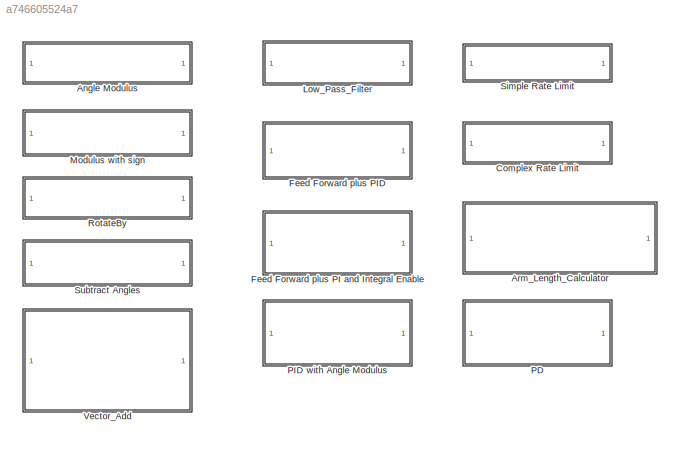
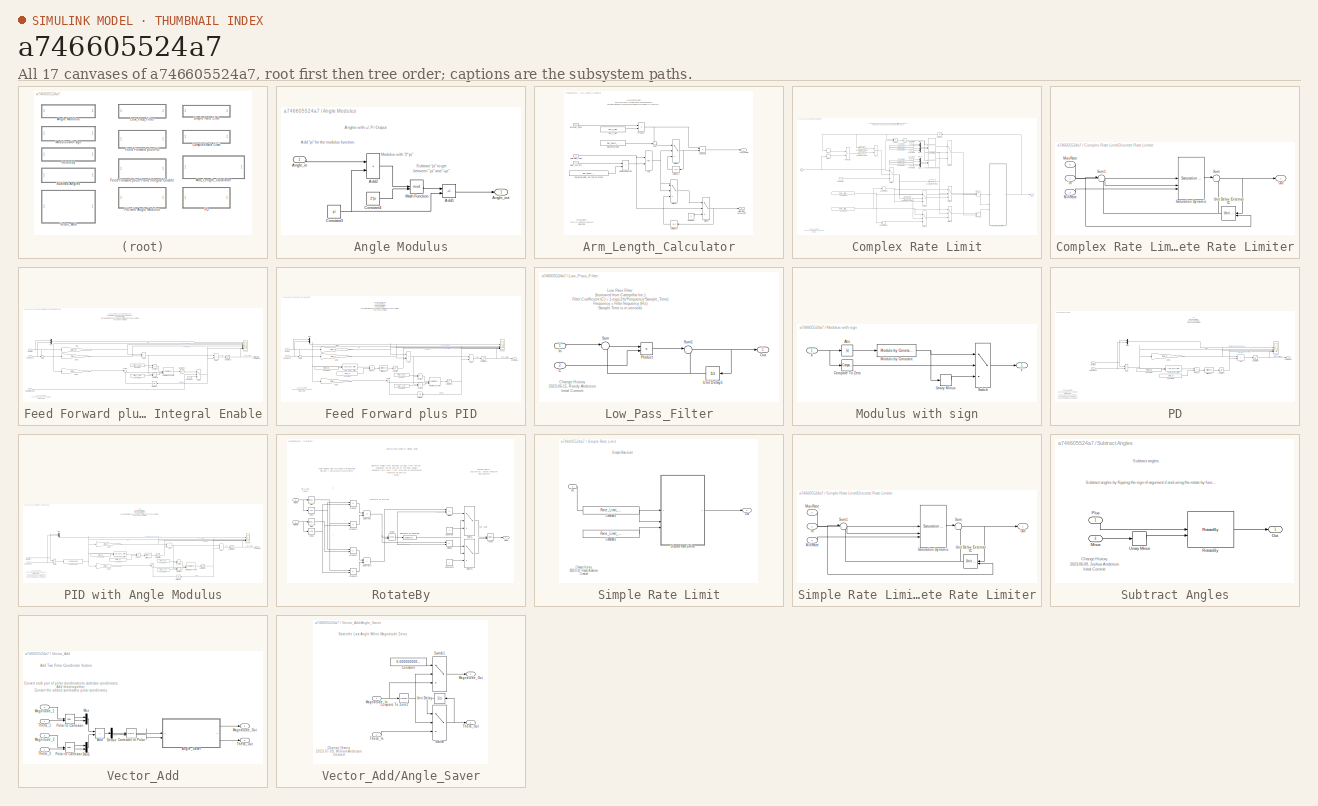
[diagram: thumbnail index - all 17 canvases of the model, root first then tree order]
MODEL slx_a746605524a7
KIND library
CONFIG AbsTol = auto
CONFIG EnableMultiTasking = off
CONFIG FixedStep = auto
CONFIG MaxStep = auto
CONFIG MinStep = auto
CONFIG RelTol = 1e-3
CONFIG SampleTimeConstraint = Unconstrained
CONFIG SolverName = VariableStepAuto
CONFIG StartTime = 0.0
CONFIG StopTime = 10.0
BLOCK [SubSystem] Angle Modulus
BLOCK [Sum] Angle Modulus/Add1
  IconShape = rectangular
  Inputs = +-
BLOCK [Sum] Angle Modulus/Add2
  IconShape = rectangular
BLOCK [Inport] Angle Modulus/Angle_in
BLOCK [Outport] Angle Modulus/Angle_out
BLOCK [Constant] Angle Modulus/Constant3
  Value = pi
BLOCK [Constant] Angle Modulus/Constant4
  Value = 2*pi
BLOCK [Math] Angle Modulus/Math Function
  Operator = mod
BLOCK [SubSystem] Arm_Length_Calculator
BLOCK [Logic] Arm_Length_Calculator/AND
  AllPortsSameDT = off
  OutDataTypeStr = boolean
BLOCK [Outport] Arm_Length_Calculator/Arm_Length
BLOCK [Inport] Arm_Length_Calculator/Calibration_Active
  Port = 3
BLOCK [Outport] Arm_Length_Calculator/Callibration_Successful
  Port = 2
BLOCK [Constant] Arm_Length_Calculator/Constant
  OutDataTypeStr = Inherit: Inherit via back propagation
  Value = 0
BLOCK [Constant] Arm_Length_Calculator/Dist_Reset_Motor_Current_Threshold
  Value = Dist_Reset_Motor_Current_Threshold
BLOCK [Constant] Arm_Length_Calculator/Dist_Reset_Value
  Value = Dist_Reset_Value
BLOCK [Inport] Arm_Length_Calculator/Encoder_Revs
BLOCK [Inport] Arm_Length_Calculator/Motor_Current
  Port = 2
BLOCK [Product] Arm_Length_Calculator/Product
BLOCK [RelationalOperator] Arm_Length_Calculator/Relational Operator
  InputSameDT = off
  Operator = >
  OutDataTypeStr = boolean
  RndMeth = Simplest
BLOCK [Constant] Arm_Length_Calculator/Rev_2_Dist
  Value = Rev_2_Dist
BLOCK [Sum] Arm_Length_Calculator/Subtract1
  IconShape = rectangular
  Inputs = +-
BLOCK [Sum] Arm_Length_Calculator/Sum
  Inputs = +-|
BLOCK [Switch] Arm_Length_Calculator/Switch1
  Criteria = u2 ~= 0
  InputSameDT = off
  SaturateOnIntegerOverflow = off
BLOCK [Switch] Arm_Length_Calculator/Switch2
  Criteria = u2 ~= 0
  InputSameDT = off
  SaturateOnIntegerOverflow = off
BLOCK [Switch] Arm_Length_Calculator/Switch3
  Criteria = u2 ~= 0
  InputSameDT = off
  SaturateOnIntegerOverflow = off
BLOCK [UnitDelay] Arm_Length_Calculator/Unit Delay1
  HasFrameUpgradeWarning = on
  SampleTime = -1
BLOCK [UnitDelay] Arm_Length_Calculator/Unit Delay2
  HasFrameUpgradeWarning = on
  SampleTime = -1
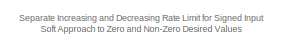
[diagram: Complex Rate Limit - part 1/5, top center region]
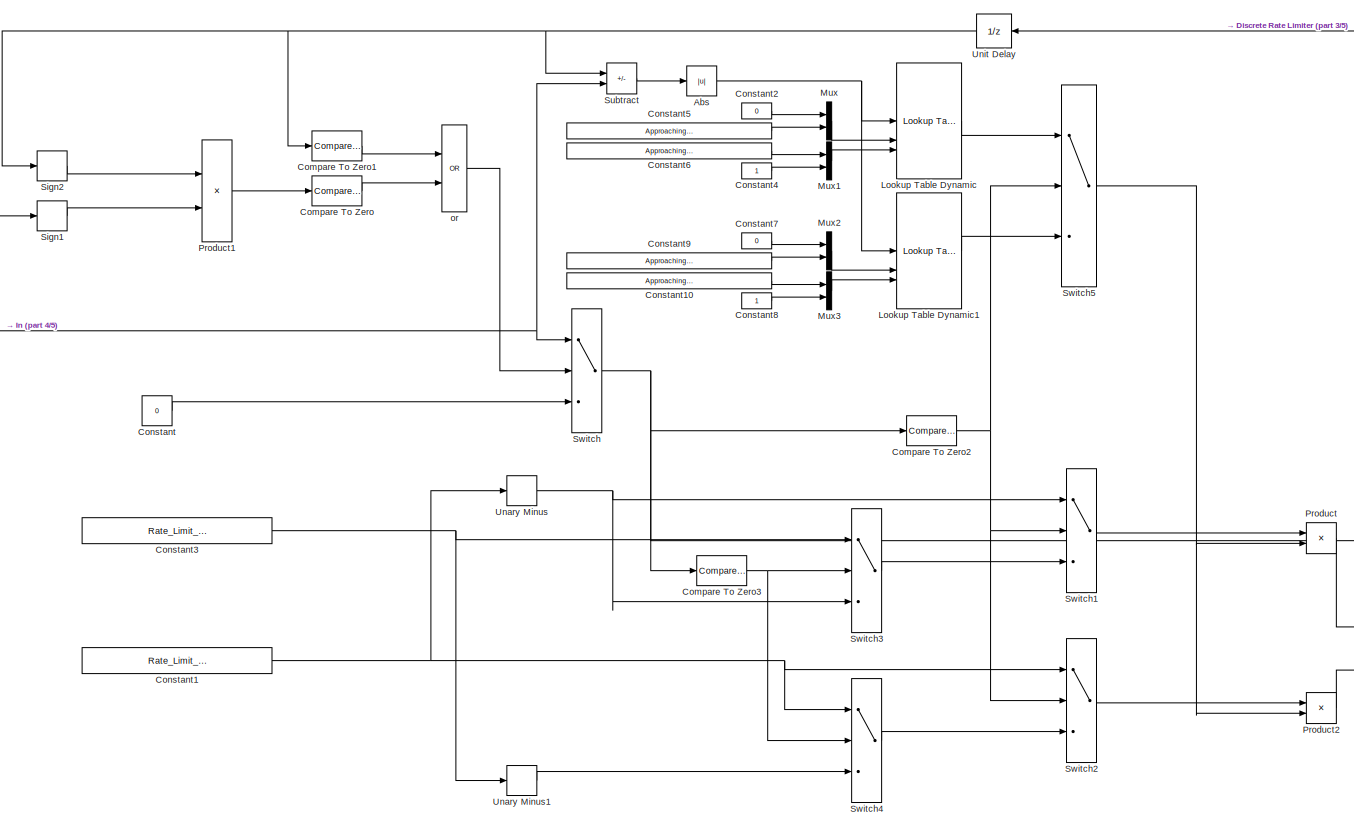
[diagram: Complex Rate Limit - part 2/5, center side, full height]
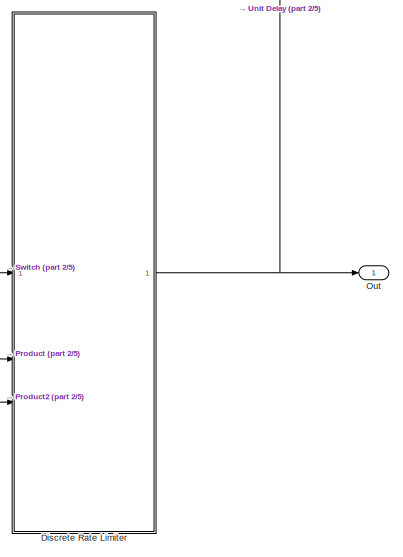
[diagram: Complex Rate Limit - part 3/5, middle right region]
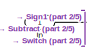
[diagram: Complex Rate Limit - part 4/5, middle left region]
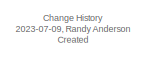
[diagram: Complex Rate Limit - part 5/5, bottom left region]
BLOCK [SubSystem] Complex Rate Limit
BLOCK [Abs] Complex Rate Limit/Abs
  SaturateOnIntegerOverflow = off
BLOCK [Reference] Complex Rate Limit/Compare To Zero  REF=simulink/Logic and Bit
Operations/Compare
To Zero
  AttributesFormatString = %<OutDataTypeStr>
  SourceBlock = simulink/Logic and Bit\nOperations/Compare\nTo Zero
  SourceType = Compare To Zero
BLOCK [Reference] Complex Rate Limit/Compare To Zero1  REF=simulink/Logic and Bit
Operations/Compare
To Zero
  AttributesFormatString = %<OutDataTypeStr>
  SourceBlock = simulink/Logic and Bit\nOperations/Compare\nTo Zero
  SourceType = Compare To Zero
BLOCK [Reference] Complex Rate Limit/Compare To Zero2  REF=simulink/Logic and Bit
Operations/Compare
To Zero
  AttributesFormatString = %<OutDataTypeStr>
  SourceBlock = simulink/Logic and Bit\nOperations/Compare\nTo Zero
  SourceType = Compare To Zero
BLOCK [Reference] Complex Rate Limit/Compare To Zero3  REF=simulink/Logic and Bit
Operations/Compare
To Zero
  AttributesFormatString = %<OutDataTypeStr>
  SourceBlock = simulink/Logic and Bit\nOperations/Compare\nTo Zero
  SourceType = Compare To Zero
BLOCK [Constant] Complex Rate Limit/Constant
  AttributesFormatString = %<OutDataTypeStr>
  OutDataTypeStr = Inherit: Inherit via back propagation
  Value = 0
BLOCK [Constant] Complex Rate Limit/Constant1
  AttributesFormatString = %<OutDataTypeStr>
  Value = Rate_Limit_Dec
BLOCK [Constant] Complex Rate Limit/Constant10
  Value = Approaching_NonZero_Final_Scale_Factor
BLOCK [Constant] Complex Rate Limit/Constant2
  Value = 0
BLOCK [Constant] Complex Rate Limit/Constant3
  AttributesFormatString = %<OutDataTypeStr>
  Value = Rate_Limit_Inc
BLOCK [Constant] Complex Rate Limit/Constant4
BLOCK [Constant] Complex Rate Limit/Constant5
  Value = Approaching_Zero_Error_Threshold
BLOCK [Constant] Complex Rate Limit/Constant6
  Value = Approaching_Zero_Final_Scale_Factor
BLOCK [Constant] Complex Rate Limit/Constant7
  Value = 0
BLOCK [Constant] Complex Rate Limit/Constant8
BLOCK [Constant] Complex Rate Limit/Constant9
  Value = Approaching_NonZero_Error_Threshold
BLOCK [SubSystem] Complex Rate Limit/Discrete Rate Limiter
BLOCK [Inport] Complex Rate Limit/Discrete Rate Limiter/In
BLOCK [Inport] Complex Rate Limit/Discrete Rate Limiter/MaxRate
  Port = 2
BLOCK [Inport] Complex Rate Limit/Discrete Rate Limiter/MinRate
  Port = 3
BLOCK [Outport] Complex Rate Limit/Discrete Rate Limiter/Out
BLOCK [Reference] Complex Rate Limit/Discrete Rate Limiter/Saturation Dynamic  REF=simulink/Discontinuities/Saturation
Dynamic
  SourceBlock = simulink/Discontinuities/Saturation\nDynamic
  SourceType = Saturation Dynamic
BLOCK [Sum] Complex Rate Limit/Discrete Rate Limiter/Sum
  Inputs = |++
  OutDataTypeStr = Inherit: Inherit via back propagation
BLOCK [Sum] Complex Rate Limit/Discrete Rate Limiter/Sum1
  Inputs = |+-
  OutDataTypeStr = Inherit: Inherit via back propagation
  SaturateOnIntegerOverflow = on
BLOCK [Reference] Complex Rate Limit/Discrete Rate Limiter/Unit Delay External IC  REF=simulink_need_slupdate/Unit Delay
External IC
  SourceBlock = simulink_need_slupdate/Unit Delay\nExternal IC
  SourceType = Unit Delay External Initial Condition
BLOCK [Inport] Complex Rate Limit/In
BLOCK [Reference] Complex Rate Limit/Lookup Table Dynamic  REF=simulink/Lookup
Tables/Lookup
Table
Dynamic
  SourceBlock = simulink/Lookup\nTables/Lookup\nTable\nDynamic
  SourceType = Lookup Table Dynamic
BLOCK [Reference] Complex Rate Limit/Lookup Table Dynamic1  REF=simulink/Lookup
Tables/Lookup
Table
Dynamic
  SourceBlock = simulink/Lookup\nTables/Lookup\nTable\nDynamic
  SourceType = Lookup Table Dynamic
BLOCK [Mux] Complex Rate Limit/Mux
  DisplayOption = bar
  Inputs = 2
BLOCK [Mux] Complex Rate Limit/Mux1
  DisplayOption = bar
  Inputs = 2
BLOCK [Mux] Complex Rate Limit/Mux2
  DisplayOption = bar
  Inputs = 2
BLOCK [Mux] Complex Rate Limit/Mux3
  DisplayOption = bar
  Inputs = 2
BLOCK [Outport] Complex Rate Limit/Out
BLOCK [Product] Complex Rate Limit/Product
BLOCK [Product] Complex Rate Limit/Product1
  AttributesFormatString = Input Same DT: %<InputSameDT>\n%<OutDataTypeStr>\nSaturate: %<SaturateOnIntegerOverflow>
  OutDataTypeStr = int8
  RndMeth = Simplest
BLOCK [Product] Complex Rate Limit/Product2
BLOCK [Signum] Complex Rate Limit/Sign1
BLOCK [Signum] Complex Rate Limit/Sign2
BLOCK [Sum] Complex Rate Limit/Subtract
  IconShape = rectangular
  Inputs = +-
BLOCK [Switch] Complex Rate Limit/Switch
  AttributesFormatString = %<Criteria>\nInput Same DT: %<InputSameDT>\n%<OutDataTypeStr>
  Criteria = u2 ~= 0
  SaturateOnIntegerOverflow = off
BLOCK [Switch] Complex Rate Limit/Switch1
  AttributesFormatString = %<Criteria>\nInput Same DT: %<InputSameDT>\n%<OutDataTypeStr>
  Criteria = u2 ~= 0
  SaturateOnIntegerOverflow = off
BLOCK [Switch] Complex Rate Limit/Switch2
  AttributesFormatString = %<Criteria>\nInput Same DT: %<InputSameDT>\n%<OutDataTypeStr>
  Criteria = u2 ~= 0
  SaturateOnIntegerOverflow = off
BLOCK [Switch] Complex Rate Limit/Switch3
  AttributesFormatString = %<Criteria>\nInput Same DT: %<InputSameDT>\n%<OutDataTypeStr>
  Criteria = u2 ~= 0
  SaturateOnIntegerOverflow = off
BLOCK [Switch] Complex Rate Limit/Switch4
  AttributesFormatString = %<Criteria>\nInput Same DT: %<InputSameDT>\n%<OutDataTypeStr>
  Criteria = u2 ~= 0
  SaturateOnIntegerOverflow = off
BLOCK [Switch] Complex Rate Limit/Switch5
  Criteria = u2 ~= 0
  InputSameDT = off
  SaturateOnIntegerOverflow = off
BLOCK [UnaryMinus] Complex Rate Limit/Unary Minus
BLOCK [UnaryMinus] Complex Rate Limit/Unary Minus1
BLOCK [UnitDelay] Complex Rate Limit/Unit Delay
  AttributesFormatString = IC: %<InitialCondition>
  HasFrameUpgradeWarning = on
  SampleTime = -1
BLOCK [Logic] Complex Rate Limit/or
  AttributesFormatString = Input Same DT: %<AllPortsSameDT>\n%<OutDataTypeStr>
  Operator = OR
  OutDataTypeStr = boolean
BLOCK [SubSystem] Feed Forward plus PI and Integral Enable
BLOCK [Sum] Feed Forward plus PI and Integral Enable/Add
  IconShape = rectangular
  Inputs = 2
BLOCK [Sum] Feed Forward plus PI and Integral Enable/Add1
  IconShape = rectangular
  Inputs = 2
BLOCK [Outport] Feed Forward plus PI and Integral Enable/Command
BLOCK [Constant] Feed Forward plus PI and Integral Enable/Constant
  Value = Limit_T_Upper
BLOCK [Constant] Feed Forward plus PI and Integral Enable/Constant1
  Value = Limit_T_Lower
BLOCK [Constant] Feed Forward plus PI and Integral Enable/Constant2
  Value = 0
BLOCK [Inport] Feed Forward plus PI and Integral Enable/Desired
BLOCK [Inport] Feed Forward plus PI and Integral Enable/Feedback
  Port = 2
BLOCK [Gain] Feed Forward plus PI and Integral Enable/Gain
  Gain = Gain_FF
BLOCK [Gain] Feed Forward plus PI and Integral Enable/Gain1
  Gain = Gain_P
BLOCK [Gain] Feed Forward plus PI and Integral Enable/Gain2
  Gain = Gain_I
BLOCK [Inport] Feed Forward plus PI and Integral Enable/Integral Enable
  Port = 3
BLOCK [Mux] Feed Forward plus PI and Integral Enable/Mux
  DisplayOption = bar
  Inputs = 2
BLOCK [Reference] Feed Forward plus PI and Integral Enable/Saturation Dynamic  REF=simulink/Discontinuities/Saturation
Dynamic
  SourceBlock = simulink/Discontinuities/Saturation\nDynamic
  SourceType = Saturation Dynamic
BLOCK [Saturate] Feed Forward plus PI and Integral Enable/Saturation1
  LowerLimit = Limit_I_Lower
  UpperLimit = Limit_I_Upper
BLOCK [Saturate] Feed Forward plus PI and Integral Enable/Saturation2
  LowerLimit = Limit_T_Lower
  UpperLimit = Limit_T_Upper
BLOCK [Scope] Feed Forward plus PI and Integral Enable/Scope
  Floating = off
  NumInputPorts = 6
  ScopeSpecificationString = Simulink.scopes.TimeScopeBlockCfg('CurrentConfiguration', extmgr.ConfigurationSet(extmgr.Configuration('Core','General UI',true),extmgr.Configuration('Core','Source UI',true),extmgr.Configuration('Sources','WiredSimulink',true,'DataLoggingVariableName','ScopeData1'),extmgr.Configuration('Visuals','Time Domain',true,'SerializedDisplays',{struct('MinYLimReal','-10','MaxYLimReal','10','YLabelReal',''...<+4834ch>
BLOCK [Sum] Feed Forward plus PI and Integral Enable/Subtract
  IconShape = rectangular
  Inputs = +-
BLOCK [Sum] Feed Forward plus PI and Integral Enable/Subtract1
  IconShape = rectangular
  Inputs = -+
BLOCK [Sum] Feed Forward plus PI and Integral Enable/Sum
  Inputs = +-|
BLOCK [Sum] Feed Forward plus PI and Integral Enable/Sum2
  Inputs = |++
BLOCK [Switch] Feed Forward plus PI and Integral Enable/Switch
  Criteria = u2 ~= 0
  InputSameDT = off
  SaturateOnIntegerOverflow = off
BLOCK [UnitDelay] Feed Forward plus PI and Integral Enable/Unit Delay
  HasFrameUpgradeWarning = on
  SampleTime = -1
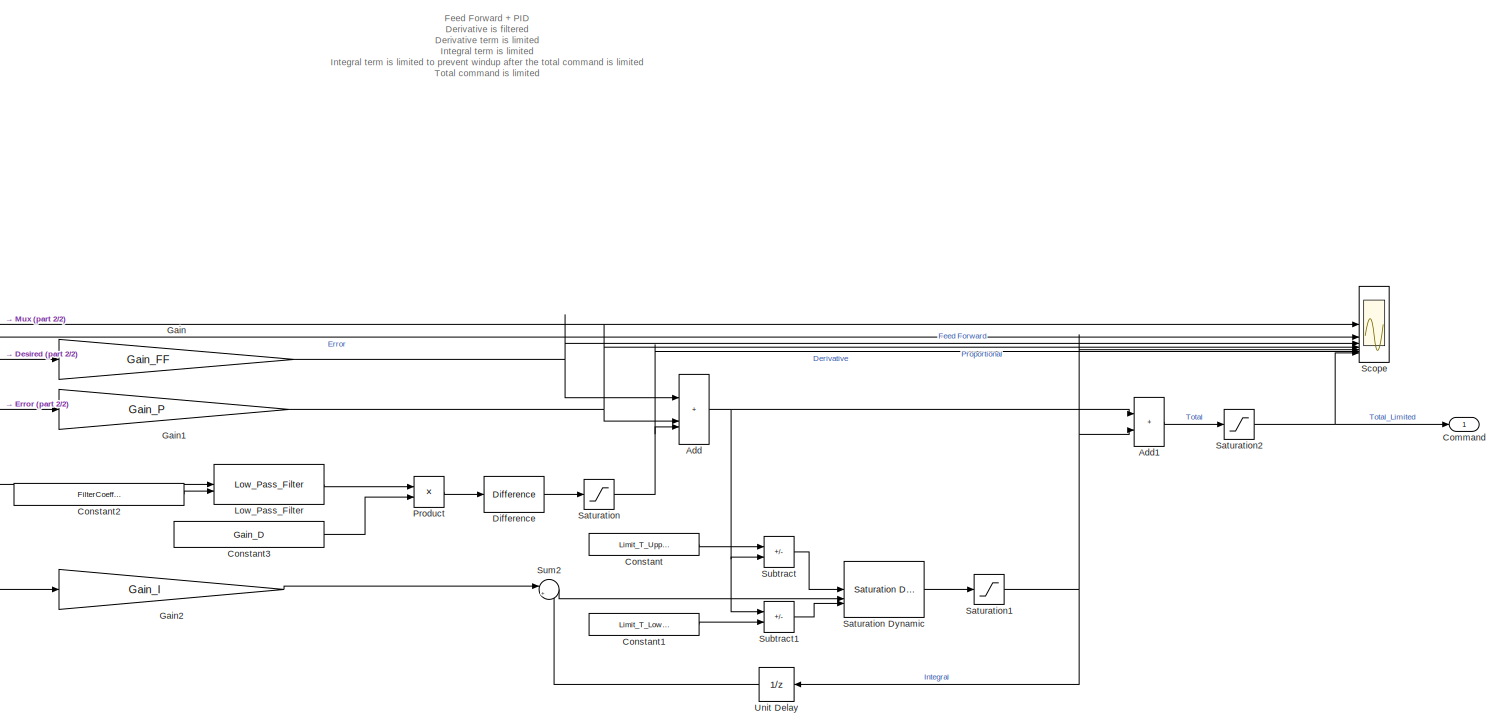
[diagram: Feed Forward plus PID - part 1/2, most of the canvas]
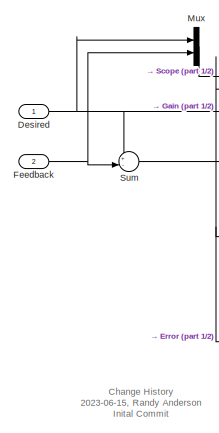
[diagram: Feed Forward plus PID - part 2/2, middle left region]
BLOCK [SubSystem] Feed Forward plus PID
BLOCK [Sum] Feed Forward plus PID/Add
  IconShape = rectangular
  Inputs = 3
BLOCK [Sum] Feed Forward plus PID/Add1
  IconShape = rectangular
  Inputs = 2
BLOCK [Outport] Feed Forward plus PID/Command
BLOCK [Constant] Feed Forward plus PID/Constant
  Value = Limit_T_Upper
BLOCK [Constant] Feed Forward plus PID/Constant1
  Value = Limit_T_Lower
BLOCK [Constant] Feed Forward plus PID/Constant2
  Value = FilterCoeff_D
BLOCK [Constant] Feed Forward plus PID/Constant3
  Value = Gain_D
BLOCK [Inport] Feed Forward plus PID/Desired
BLOCK [Reference] Feed Forward plus PID/Difference  REF=simulink/Discrete/Difference
  SourceBlock = simulink/Discrete/Difference
  SourceType = Difference
BLOCK [Inport] Feed Forward plus PID/Feedback
  Port = 2
BLOCK [Gain] Feed Forward plus PID/Gain
  Gain = Gain_FF
BLOCK [Gain] Feed Forward plus PID/Gain1
  Gain = Gain_P
BLOCK [Gain] Feed Forward plus PID/Gain2
  Gain = Gain_I
BLOCK [Reference] Feed Forward plus PID/Low_Pass_Filter  REF=$bdroot/Low_Pass_Filter
  SourceBlock = $bdroot/Low_Pass_Filter
  SourceType = SubSystem
BLOCK [Mux] Feed Forward plus PID/Mux
  DisplayOption = bar
  Inputs = 2
BLOCK [Product] Feed Forward plus PID/Product
BLOCK [Saturate] Feed Forward plus PID/Saturation
  LowerLimit = Limit_D_Lower
  UpperLimit = Limit_D_Upper
BLOCK [Reference] Feed Forward plus PID/Saturation Dynamic  REF=simulink/Discontinuities/Saturation
Dynamic
  SourceBlock = simulink/Discontinuities/Saturation\nDynamic
  SourceType = Saturation Dynamic
BLOCK [Saturate] Feed Forward plus PID/Saturation1
  LowerLimit = Limit_I_Lower
  UpperLimit = Limit_I_Upper
BLOCK [Saturate] Feed Forward plus PID/Saturation2
  LowerLimit = Limit_T_Lower
  UpperLimit = Limit_T_Upper
BLOCK [Scope] Feed Forward plus PID/Scope
  Floating = off
  NumInputPorts = 7
  ScopeSpecificationString = Simulink.scopes.TimeScopeBlockCfg('CurrentConfiguration', extmgr.ConfigurationSet(extmgr.Configuration('Core','General UI',true),extmgr.Configuration('Core','Source UI',true),extmgr.Configuration('Sources','WiredSimulink',true,'DataLoggingVariableName','ScopeData1'),extmgr.Configuration('Visuals','Time Domain',true,'SerializedDisplays',{struct('MinYLimReal','-10','MaxYLimReal','10','YLabelReal',''...<+5726ch>
BLOCK [Sum] Feed Forward plus PID/Subtract
  IconShape = rectangular
  Inputs = +-
BLOCK [Sum] Feed Forward plus PID/Subtract1
  IconShape = rectangular
  Inputs = -+
BLOCK [Sum] Feed Forward plus PID/Sum
  Inputs = +-|
BLOCK [Sum] Feed Forward plus PID/Sum2
  Inputs = |++
BLOCK [UnitDelay] Feed Forward plus PID/Unit Delay
  HasFrameUpgradeWarning = on
  SampleTime = -1
BLOCK [SubSystem] Low_Pass_Filter
BLOCK [Inport] Low_Pass_Filter/C
  Port = 2
BLOCK [Inport] Low_Pass_Filter/In
BLOCK [Outport] Low_Pass_Filter/Out
BLOCK [Product] Low_Pass_Filter/Product
BLOCK [Sum] Low_Pass_Filter/Sum
  Inputs = |+-
BLOCK [Sum] Low_Pass_Filter/Sum1
  Inputs = |++
BLOCK [UnitDelay] Low_Pass_Filter/Unit Delay1
  HasFrameUpgradeWarning = on
  SampleTime = -1
BLOCK [SubSystem] Modulus with sign
BLOCK [Abs] Modulus with sign/Abs
  SaturateOnIntegerOverflow = off
BLOCK [Reference] Modulus with sign/Compare To Zero  REF=simulink/Logic and Bit
Operations/Compare
To Zero
  SourceBlock = simulink/Logic and Bit\nOperations/Compare\nTo Zero
  SourceType = Compare To Zero
BLOCK [Reference] Modulus with sign/Modulo by Constant  REF=embmathops/Modulo by Constant
  LibrarySourceBlock = embeddedMathLib/Modulo by Constant
  SourceBlock = embmathops/Modulo by Constant
  SourceType = fixed.system.ModByConstant
BLOCK [Switch] Modulus with sign/Switch
  Criteria = u2 ~= 0
  InputSameDT = off
  SaturateOnIntegerOverflow = off
BLOCK [UnaryMinus] Modulus with sign/Unary Minus
BLOCK [Inport] Modulus with sign/X
BLOCK [Outport] Modulus with sign/Y
BLOCK [SubSystem] PD
BLOCK [Sum] PD/Add
  IconShape = rectangular
  Inputs = 2
BLOCK [Outport] PD/Command
BLOCK [Constant] PD/Constant2
  Value = FilterCoeff_D
BLOCK [Constant] PD/Constant3
  Value = Gain_D
BLOCK [Inport] PD/Desired
BLOCK [Reference] PD/Difference  REF=simulink/Discrete/Difference
  SourceBlock = simulink/Discrete/Difference
  SourceType = Difference
BLOCK [Inport] PD/Feedback
  Port = 2
BLOCK [Gain] PD/Gain1
  Gain = Gain_P
BLOCK [Reference] PD/Low_Pass_Filter  REF=$bdroot/Low_Pass_Filter
  SourceBlock = $bdroot/Low_Pass_Filter
  SourceType = SubSystem
BLOCK [Mux] PD/Mux
  DisplayOption = bar
  Inputs = 2
BLOCK [Product] PD/Product
BLOCK [Saturate] PD/Saturation
  LowerLimit = Limit_D_Lower
  UpperLimit = Limit_D_Upper
BLOCK [Saturate] PD/Saturation2
  LowerLimit = Limit_T_Lower
  UpperLimit = Limit_T_Upper
BLOCK [Scope] PD/Scope
  Floating = off
  NumInputPorts = 5
  ScopeSpecificationString = Simulink.scopes.TimeScopeBlockCfg('CurrentConfiguration', extmgr.ConfigurationSet(extmgr.Configuration('Core','General UI',true),extmgr.Configuration('Core','Source UI',true),extmgr.Configuration('Sources','WiredSimulink',true,'DataLoggingVariableName','ScopeData1'),extmgr.Configuration('Visuals','Time Domain',true,'SerializedDisplays',{struct('MinYLimReal','-10','MaxYLimReal','10','YLabelReal',''...<+4833ch>
BLOCK [Sum] PD/Sum
  IconShape = rectangular
  Inputs = +-
BLOCK [SubSystem] PID with Angle Modulus
BLOCK [Sum] PID with Angle Modulus/Add
  IconShape = rectangular
  Inputs = 2
BLOCK [Sum] PID with Angle Modulus/Add1
  IconShape = rectangular
  Inputs = 2
BLOCK [Reference] PID with Angle Modulus/Angle Modulus  REF=$bdroot/Angle Modulus
  SourceBlock = $bdroot/Angle Modulus
  SourceType = SubSystem
BLOCK [Outport] PID with Angle Modulus/Command
BLOCK [Constant] PID with Angle Modulus/Constant
  Value = Limit_T_Upper
BLOCK [Constant] PID with Angle Modulus/Constant1
  Value = Limit_T_Lower
BLOCK [Constant] PID with Angle Modulus/Constant2
  Value = FilterCoeff_D
BLOCK [Constant] PID with Angle Modulus/Constant3
  Value = Gain_D
BLOCK [Inport] PID with Angle Modulus/Desired
BLOCK [Reference] PID with Angle Modulus/Difference  REF=simulink/Discrete/Difference
  SourceBlock = simulink/Discrete/Difference
  SourceType = Difference
BLOCK [Inport] PID with Angle Modulus/Feedback
  Port = 2
BLOCK [Gain] PID with Angle Modulus/Gain1
  Gain = Gain_P
BLOCK [Gain] PID with Angle Modulus/Gain2
  Gain = Gain_I
BLOCK [Reference] PID with Angle Modulus/Low_Pass_Filter  REF=$bdroot/Low_Pass_Filter
  SourceBlock = $bdroot/Low_Pass_Filter
  SourceType = SubSystem
BLOCK [Mux] PID with Angle Modulus/Mux
  DisplayOption = bar
  Inputs = 2
BLOCK [Product] PID with Angle Modulus/Product
BLOCK [Saturate] PID with Angle Modulus/Saturation
  LowerLimit = Limit_D_Lower
  UpperLimit = Limit_D_Upper
BLOCK [Reference] PID with Angle Modulus/Saturation Dynamic  REF=simulink/Discontinuities/Saturation
Dynamic
  SourceBlock = simulink/Discontinuities/Saturation\nDynamic
  SourceType = Saturation Dynamic
BLOCK [Saturate] PID with Angle Modulus/Saturation1
  LowerLimit = Limit_I_Lower
  UpperLimit = Limit_I_Upper
BLOCK [Saturate] PID with Angle Modulus/Saturation2
  LowerLimit = Limit_T_Lower
  UpperLimit = Limit_T_Upper
BLOCK [Scope] PID with Angle Modulus/Scope
  Floating = off
  NumInputPorts = 6
  ScopeSpecificationString = Simulink.scopes.TimeScopeBlockCfg('CurrentConfiguration', extmgr.ConfigurationSet(extmgr.Configuration('Core','General UI',true),extmgr.Configuration('Core','Source UI',true),extmgr.Configuration('Sources','WiredSimulink',true,'DataLoggingVariableName','ScopeData1'),extmgr.Configuration('Visuals','Time Domain',true,'SerializedDisplays',{struct('MinYLimReal','-10','MaxYLimReal','10','YLabelReal',''...<+4834ch>
BLOCK [Sum] PID with Angle Modulus/Subtract
  IconShape = rectangular
  Inputs = +-
BLOCK [Sum] PID with Angle Modulus/Subtract1
  IconShape = rectangular
  Inputs = -+
BLOCK [Sum] PID with Angle Modulus/Sum
  IconShape = rectangular
  Inputs = +-
BLOCK [Sum] PID with Angle Modulus/Sum2
  Inputs = |++
BLOCK [UnitDelay] PID with Angle Modulus/Unit Delay
  HasFrameUpgradeWarning = on
  SampleTime = -1
BLOCK [SubSystem] RotateBy
BLOCK [Trigonometry] RotateBy/Atan1
  Operator = atan2
BLOCK [Inport] RotateBy/Base
  OutDataTypeStr = double
  Unit = rad
BLOCK [Reference] RotateBy/Compare To Constant  REF=simulink/Logic and Bit
Operations/Compare
To Constant
  SourceBlock = simulink/Logic and Bit\nOperations/Compare\nTo Constant
  SourceType = Compare To Constant
BLOCK [Constant] RotateBy/Constant
  Value = 0
BLOCK [Constant] RotateBy/Constant1
BLOCK [Trigonometry] RotateBy/Cos4
  Operator = cos
BLOCK [Trigonometry] RotateBy/Cos5
  Operator = cos
BLOCK [Product] RotateBy/Divide
  Inputs = */
BLOCK [Product] RotateBy/Divide1
  Inputs = */
BLOCK [Inport] RotateBy/Follower
  OutDataTypeStr = double
  Port = 2
  Unit = rad
BLOCK [Math] RotateBy/Hypot
  Operator = hypot
BLOCK [Product] RotateBy/Product
BLOCK [Product] RotateBy/Product1
BLOCK [Product] RotateBy/Product2
BLOCK [Product] RotateBy/Product3
BLOCK [Trigonometry] RotateBy/Sin4
BLOCK [Trigonometry] RotateBy/Sin5
BLOCK [Sum] RotateBy/Subtract
  IconShape = rectangular
  Inputs = +-
BLOCK [Sum] RotateBy/Subtract1
  IconShape = rectangular
BLOCK [Switch] RotateBy/Switch
  Criteria = u2 ~= 0
  InputSameDT = off
  SaturateOnIntegerOverflow = off
BLOCK [Switch] RotateBy/Switch1
  Criteria = u2 ~= 0
  InputSameDT = off
  SaturateOnIntegerOverflow = off
BLOCK [Outport] RotateBy/Value
  OutDataTypeStr = double
  Unit = rad
BLOCK [SubSystem] Simple Rate Limit
BLOCK [Constant] Simple Rate Limit/Constant1
  AttributesFormatString = %<OutDataTypeStr>
  Value = Rate_Limit_Dec
BLOCK [Constant] Simple Rate Limit/Constant3
  AttributesFormatString = %<OutDataTypeStr>
  Value = Rate_Limit_Inc
BLOCK [SubSystem] Simple Rate Limit/Discrete Rate Limiter
BLOCK [Inport] Simple Rate Limit/Discrete Rate Limiter/In
BLOCK [Inport] Simple Rate Limit/Discrete Rate Limiter/MaxRate
  Port = 2
BLOCK [Inport] Simple Rate Limit/Discrete Rate Limiter/MinRate
  Port = 3
BLOCK [Outport] Simple Rate Limit/Discrete Rate Limiter/Out
BLOCK [Reference] Simple Rate Limit/Discrete Rate Limiter/Saturation Dynamic  REF=simulink/Discontinuities/Saturation
Dynamic
  SourceBlock = simulink/Discontinuities/Saturation\nDynamic
  SourceType = Saturation Dynamic
BLOCK [Sum] Simple Rate Limit/Discrete Rate Limiter/Sum
  Inputs = |++
  OutDataTypeStr = Inherit: Inherit via back propagation
BLOCK [Sum] Simple Rate Limit/Discrete Rate Limiter/Sum1
  Inputs = |+-
  OutDataTypeStr = Inherit: Inherit via back propagation
  SaturateOnIntegerOverflow = on
BLOCK [Reference] Simple Rate Limit/Discrete Rate Limiter/Unit Delay External IC  REF=simulink_need_slupdate/Unit Delay
External IC
  SourceBlock = simulink_need_slupdate/Unit Delay\nExternal IC
  SourceType = Unit Delay External Initial Condition
BLOCK [Inport] Simple Rate Limit/In
BLOCK [Outport] Simple Rate Limit/Out
BLOCK [SubSystem] Subtract Angles
BLOCK [Inport] Subtract Angles/Minus
  Port = 2
BLOCK [Outport] Subtract Angles/Out
BLOCK [Inport] Subtract Angles/Plus
BLOCK [Reference] Subtract Angles/RotateBy  REF=$bdroot/RotateBy
  SourceBlock = $bdroot/RotateBy
  SourceType = SubSystem
BLOCK [UnaryMinus] Subtract Angles/Unary Minus
BLOCK [SubSystem] Vector_Add
BLOCK [Sum] Vector_Add/Add
  IconShape = rectangular
BLOCK [SubSystem] Vector_Add/Angle_Saver
BLOCK [Reference] Vector_Add/Angle_Saver/Compare To Zero1  REF=simulink/Logic and Bit
Operations/Compare
To Zero
  SourceBlock = simulink/Logic and Bit\nOperations/Compare\nTo Zero
  SourceType = Compare To Zero
BLOCK [Constant] Vector_Add/Angle_Saver/Constant
  Value = 0.000000000000001
BLOCK [Inport] Vector_Add/Angle_Saver/Magnatude_In
BLOCK [Outport] Vector_Add/Angle_Saver/Magnatude_Out
BLOCK [Switch] Vector_Add/Angle_Saver/Switch
  Criteria = u2 > Threshold
  InputSameDT = off
  SaturateOnIntegerOverflow = off
BLOCK [Switch] Vector_Add/Angle_Saver/Switch1
  Criteria = u2 > Threshold
  InputSameDT = off
  SaturateOnIntegerOverflow = off
BLOCK [Inport] Vector_Add/Angle_Saver/Theta_In
  Port = 2
BLOCK [Outport] Vector_Add/Angle_Saver/Theta_Out
  Port = 2
BLOCK [UnitDelay] Vector_Add/Angle_Saver/Unit Delay
  HasFrameUpgradeWarning = on
  SampleTime = -1
BLOCK [Reference] Vector_Add/Cartesian to Polar  REF=simulink_extras/Transformations/Cartesian to
Polar
  SourceBlock = simulink_extras/Transformations/Cartesian to\nPolar
  SourceType = Cart2Polar
BLOCK [Demux] Vector_Add/Demux
  Outputs = 2
BLOCK [Outport] Vector_Add/Magnatude_Out
BLOCK [Inport] Vector_Add/Magnitude_1
BLOCK [Inport] Vector_Add/Magnitude_2
  Port = 3
BLOCK [Mux] Vector_Add/Mux
  DisplayOption = bar
  Inputs = 2
BLOCK [Mux] Vector_Add/Mux1
  DisplayOption = bar
  Inputs = 2
BLOCK [Reference] Vector_Add/Polar to Cartesian  REF=simulink_extras/Transformations/Polar to
Cartesian
  SourceBlock = simulink_extras/Transformations/Polar to\nCartesian
  SourceType = Polar2Cart
BLOCK [Reference] Vector_Add/Polar to Cartesian1  REF=simulink_extras/Transformations/Polar to
Cartesian
  SourceBlock = simulink_extras/Transformations/Polar to\nCartesian
  SourceType = Polar2Cart
BLOCK [Inport] Vector_Add/Theta_1
  Port = 2
BLOCK [Inport] Vector_Add/Theta_2
  Port = 4
BLOCK [Outport] Vector_Add/Theta_Out
  Port = 2
ANNOTATION Angle Modulus: Angles with +/- Pi Output
ANNOTATION Angle Modulus: Add "pi" for the modulus function.
ANNOTATION Angle Modulus: Modulus with "2*pi"
ANNOTATION Angle Modulus: Subtract "pi" to get between "-pi" and "+pi"
ANNOTATION Arm_Length_Calculator: Arm Length Calculator Convert encoder revolutions into arm extension length. Reset the output to a preset value when an flag is true and motor current exceeds a threshold.
ANNOTATION Arm_Length_Calculator: Change History 2024-02-18, Randy Anderson Inital Commit
ANNOTATION Complex Rate Limit: Separate Increasing and Decreasing Rate Limit for Signed Input Soft Approach to Zero and Non-Zero Desired Values
ANNOTATION Complex Rate Limit: Change History 2023-07-09, Randy Anderson Created
ANNOTATION Feed Forward plus PI and Integral Enable: Change History 2024-02-06, Randy Anderson Inital Commit
ANNOTATION Feed Forward plus PI and Integral Enable: Feed Forward + PI and Integral Enable Integral term is enabled using external input Integral term is limited Integral term is limited to prevent windup after the total command is limited Total command is limited
ANNOTATION Feed Forward plus PID: Change History 2023-06-15, Randy Anderson Inital Commit
ANNOTATION Feed Forward plus PID: Feed Forward + PID Derivative is filtered Derivative term is limited Integral term is limited Integral term is limited to prevent windup after the total command is limited Total command is limited
ANNOTATION Low_Pass_Filter: Low Pass Filter (borrowed from Caterpillar Inc.) Filter Coefficient (C) = 1-exp(-2*pi*Frequency*Sample_Time) Frequency = Filter frequency (Hz) Sample Time is in seconds
ANNOTATION Low_Pass_Filter: Change History 2023-06-15, Randy Anderson Inital Commit
ANNOTATION PD: PD Derivative is filtered Derivative term is limited Total command is limited
ANNOTATION PD: Change History 2023-06-15, Randy Anderson Inital Commit 2023-07-xx, Josh Anderson Added wrapping on error signal 2023-11-18, Randy Anderson Replaced with simpler wrapping function with the same result
ANNOTATION PID with Angle Modulus: Change History 2023-06-15, Randy Anderson Inital Commit 2023-07-xx, Josh Anderson Added wrapping on error signal 2023-11-18, Randy Anderson Replaced with simpler wrapping function with the same result
ANNOTATION PID with Angle Modulus: PID Derivative is filtered Derivative term is limited Integral term is limited Integral term is limited to prevent windup after the total command is limited Total command is limited
ANNOTATION RotateBy: Angle addition Sine and Cosine trig identities Sin(a+b) = sin(a)cos(b)+cos(a)sin(b)
ANNOTATION RotateBy: Rotate base angle by follower angle
ANNOTATION RotateBy: Change History 2023-06-09, Joshua Anderson Inital Commit
ANNOTATION RotateBy: Algorithm copied from Rotation 2D class from WPILib - calculates the sin and cos of the input angles - calculates the x and y from step one as documented - estimate sin and cos - atan2
ANNOTATION RotateBy: Calc Angle
ANNOTATION RotateBy: Estimate Sin and Cos
ANNOTATION RotateBy: Sin & Cos Inputs
ANNOTATION RotateBy: X
ANNOTATION RotateBy: Y
ANNOTATION Simple Rate Limit: Simple Rate Limit
ANNOTATION Simple Rate Limit: Change History 2023-07-10, Randy Anderson Created
ANNOTATION Subtract Angles: Subtract angles by flipping the sign of argument 2 and using the rotate by function to effectivly add the inverse.
ANNOTATION Subtract Angles: Change History 2023-06-09, Joshua Anderson Inital Commit
ANNOTATION Subtract Angles: Subtract angles
ANNOTATION Vector_Add: Convert each pair of polar coordinates to cartesian coordinates. Add them together. Convert the added sum back to polar coordinates.
ANNOTATION Vector_Add: Add Two Polar Coordinate Vectors
ANNOTATION Vector_Add/Angle_Saver: Change History 2023-07-09, William Anderson Created
ANNOTATION Vector_Add/Angle_Saver: Saves the Last Angle When Magnatude Zeros
LINE Angle Modulus/Add1:1 -> Angle Modulus/Angle_out:1
LINE Angle Modulus/Add2:1 -> Angle Modulus/Math Function:1
LINE Angle Modulus/Angle_in:1 -> Angle Modulus/Add2:1
NET Angle Modulus/Constant3:1 -> Angle Modulus/Add1:2, Angle Modulus/Add2:2
LINE Angle Modulus/Constant4:1 -> Angle Modulus/Math Function:2
LINE Angle Modulus/Math Function:1 -> Angle Modulus/Add1:1
NET Arm_Length_Calculator/AND:1 -> Arm_Length_Calculator/Switch1:2, Arm_Length_Calculator/Switch3:1, Arm_Length_Calculator/Switch3:2
NET Arm_Length_Calculator/Calibration_Active:1 -> Arm_Length_Calculator/AND:1, Arm_Length_Calculator/Switch2:2
LINE Arm_Length_Calculator/Constant:1 -> Arm_Length_Calculator/Switch2:3
LINE Arm_Length_Calculator/Dist_Reset_Motor_Current_Threshold:1 -> Arm_Length_Calculator/Relational Operator:2
LINE Arm_Length_Calculator/Dist_Reset_Value:1 -> Arm_Length_Calculator/Sum:2
LINE Arm_Length_Calculator/Encoder_Revs:1 -> Arm_Length_Calculator/Product:1
LINE Arm_Length_Calculator/Motor_Current:1 -> Arm_Length_Calculator/Relational Operator:1
NET Arm_Length_Calculator/Product:1 -> Arm_Length_Calculator/Subtract1:1, Arm_Length_Calculator/Sum:1
LINE Arm_Length_Calculator/Relational Operator:1 -> Arm_Length_Calculator/AND:2
LINE Arm_Length_Calculator/Rev_2_Dist:1 -> Arm_Length_Calculator/Product:2
LINE Arm_Length_Calculator/Subtract1:1 -> Arm_Length_Calculator/Arm_Length:1
LINE Arm_Length_Calculator/Sum:1 -> Arm_Length_Calculator/Switch1:1
NET Arm_Length_Calculator/Switch1:1 -> Arm_Length_Calculator/Subtract1:2, Arm_Length_Calculator/Unit Delay1:1
NET Arm_Length_Calculator/Switch2:1 -> Arm_Length_Calculator/Callibration_Successful:1, Arm_Length_Calculator/Unit Delay2:1
LINE Arm_Length_Calculator/Switch3:1 -> Arm_Length_Calculator/Switch2:1
LINE Arm_Length_Calculator/Unit Delay1:1 -> Arm_Length_Calculator/Switch1:3
LINE Arm_Length_Calculator/Unit Delay2:1 -> Arm_Length_Calculator/Switch3:3
NET Complex Rate Limit/Abs:1 -> Complex Rate Limit/Lookup Table Dynamic1:1, Complex Rate Limit/Lookup Table Dynamic:1
LINE Complex Rate Limit/Compare To Zero1:1 -> Complex Rate Limit/or:1
NET Complex Rate Limit/Compare To Zero2:1 -> Complex Rate Limit/Switch1:2, Complex Rate Limit/Switch2:2, Complex Rate Limit/Switch5:2
NET Complex Rate Limit/Compare To Zero3:1 -> Complex Rate Limit/Switch3:2, Complex Rate Limit/Switch4:2
LINE Complex Rate Limit/Compare To Zero:1 -> Complex Rate Limit/or:2
LINE Complex Rate Limit/Constant10:1 -> Complex Rate Limit/Mux3:1
NET Complex Rate Limit/Constant1:1 -> Complex Rate Limit/Switch2:1, Complex Rate Limit/Switch4:1, Complex Rate Limit/Unary Minus:1
LINE Complex Rate Limit/Constant2:1 -> Complex Rate Limit/Mux:1
NET Complex Rate Limit/Constant3:1 -> Complex Rate Limit/Switch3:1, Complex Rate Limit/Unary Minus1:1
LINE Complex Rate Limit/Constant4:1 -> Complex Rate Limit/Mux1:2
LINE Complex Rate Limit/Constant5:1 -> Complex Rate Limit/Mux:2
LINE Complex Rate Limit/Constant6:1 -> Complex Rate Limit/Mux1:1
LINE Complex Rate Limit/Constant7:1 -> Complex Rate Limit/Mux2:1
LINE Complex Rate Limit/Constant8:1 -> Complex Rate Limit/Mux3:2
LINE Complex Rate Limit/Constant9:1 -> Complex Rate Limit/Mux2:2
LINE Complex Rate Limit/Constant:1 -> Complex Rate Limit/Switch:3
NET Complex Rate Limit/Discrete Rate Limiter/In:1 -> Complex Rate Limit/Discrete Rate Limiter/Sum1:1, Complex Rate Limit/Discrete Rate Limiter/Unit Delay External IC:2
LINE Complex Rate Limit/Discrete Rate Limiter/MaxRate:1 -> Complex Rate Limit/Discrete Rate Limiter/Saturation Dynamic:1
LINE Complex Rate Limit/Discrete Rate Limiter/MinRate:1 -> Complex Rate Limit/Discrete Rate Limiter/Saturation Dynamic:3
LINE Complex Rate Limit/Discrete Rate Limiter/Saturation Dynamic:1 -> Complex Rate Limit/Discrete Rate Limiter/Sum:1
LINE Complex Rate Limit/Discrete Rate Limiter/Sum1:1 -> Complex Rate Limit/Discrete Rate Limiter/Saturation Dynamic:2
NET Complex Rate Limit/Discrete Rate Limiter/Sum:1 -> Complex Rate Limit/Discrete Rate Limiter/Out:1, Complex Rate Limit/Discrete Rate Limiter/Unit Delay External IC:1
NET Complex Rate Limit/Discrete Rate Limiter/Unit Delay External IC:1 -> Complex Rate Limit/Discrete Rate Limiter/Sum1:2, Complex Rate Limit/Discrete Rate Limiter/Sum:2
NET Complex Rate Limit/Discrete Rate Limiter:1 -> Complex Rate Limit/Out:1, Complex Rate Limit/Unit Delay:1
NET Complex Rate Limit/In:1 -> Complex Rate Limit/Sign1:1, Complex Rate Limit/Subtract:2, Complex Rate Limit/Switch:1
LINE Complex Rate Limit/Lookup Table Dynamic1:1 -> Complex Rate Limit/Switch5:3
LINE Complex Rate Limit/Lookup Table Dynamic:1 -> Complex Rate Limit/Switch5:1
LINE Complex Rate Limit/Mux1:1 -> Complex Rate Limit/Lookup Table Dynamic:3
LINE Complex Rate Limit/Mux2:1 -> Complex Rate Limit/Lookup Table Dynamic1:2
LINE Complex Rate Limit/Mux3:1 -> Complex Rate Limit/Lookup Table Dynamic1:3
LINE Complex Rate Limit/Mux:1 -> Complex Rate Limit/Lookup Table Dynamic:2
LINE Complex Rate Limit/Product1:1 -> Complex Rate Limit/Compare To Zero:1
LINE Complex Rate Limit/Product2:1 -> Complex Rate Limit/Discrete Rate Limiter:3
LINE Complex Rate Limit/Product:1 -> Complex Rate Limit/Discrete Rate Limiter:2
LINE Complex Rate Limit/Sign1:1 -> Complex Rate Limit/Product1:2
LINE Complex Rate Limit/Sign2:1 -> Complex Rate Limit/Product1:1
LINE Complex Rate Limit/Subtract:1 -> Complex Rate Limit/Abs:1
LINE Complex Rate Limit/Switch1:1 -> Complex Rate Limit/Product:1
LINE Complex Rate Limit/Switch2:1 -> Complex Rate Limit/Product2:1
LINE Complex Rate Limit/Switch3:1 -> Complex Rate Limit/Switch1:3
LINE Complex Rate Limit/Switch4:1 -> Complex Rate Limit/Switch2:3
NET Complex Rate Limit/Switch5:1 -> Complex Rate Limit/Product2:2, Complex Rate Limit/Product:2
NET Complex Rate Limit/Switch:1 -> Complex Rate Limit/Compare To Zero2:1, Complex Rate Limit/Compare To Zero3:1, Complex Rate Limit/Discrete Rate Limiter:1
LINE Complex Rate Limit/Unary Minus1:1 -> Complex Rate Limit/Switch4:3
NET Complex Rate Limit/Unary Minus:1 -> Complex Rate Limit/Switch1:1, Complex Rate Limit/Switch3:3
NET Complex Rate Limit/Unit Delay:1 -> Complex Rate Limit/Compare To Zero1:1, Complex Rate Limit/Sign2:1, Complex Rate Limit/Subtract:1
LINE Complex Rate Limit/or:1 -> Complex Rate Limit/Switch:2
LINE Feed Forward plus PI and Integral Enable/Add1:1 -> Feed Forward plus PI and Integral Enable/Saturation2:1
NET Feed Forward plus PI and Integral Enable/Add:1 -> Feed Forward plus PI and Integral Enable/Add1:1, Feed Forward plus PI and Integral Enable/Subtract1:1, Feed Forward plus PI and Integral Enable/Subtract:2
LINE Feed Forward plus PI and Integral Enable/Constant1:1 -> Feed Forward plus PI and Integral Enable/Subtract1:2
LINE Feed Forward plus PI and Integral Enable/Constant2:1 -> Feed Forward plus PI and Integral Enable/Switch:3
LINE Feed Forward plus PI and Integral Enable/Constant:1 -> Feed Forward plus PI and Integral Enable/Subtract:1
NET Feed Forward plus PI and Integral Enable/Desired:1 -> Feed Forward plus PI and Integral Enable/Gain:1, Feed Forward plus PI and Integral Enable/Mux:1, Feed Forward plus PI and Integral Enable/Sum:1
NET Feed Forward plus PI and Integral Enable/Feedback:1 -> Feed Forward plus PI and Integral Enable/Mux:2, Feed Forward plus PI and Integral Enable/Sum:2
NET Feed Forward plus PI and Integral Enable/Gain1:1 -> Feed Forward plus PI and Integral Enable/Add:2, Feed Forward plus PI and Integral Enable/Scope:4
LINE Feed Forward plus PI and Integral Enable/Gain2:1 -> Feed Forward plus PI and Integral Enable/Sum2:1
NET Feed Forward plus PI and Integral Enable/Gain:1 -> Feed Forward plus PI and Integral Enable/Add:1, Feed Forward plus PI and Integral Enable/Scope:3
LINE Feed Forward plus PI and Integral Enable/Integral Enable:1 -> Feed Forward plus PI and Integral Enable/Switch:2
LINE Feed Forward plus PI and Integral Enable/Mux:1 -> Feed Forward plus PI and Integral Enable/Scope:1
LINE Feed Forward plus PI and Integral Enable/Saturation Dynamic:1 -> Feed Forward plus PI and Integral Enable/Saturation1:1
LINE Feed Forward plus PI and Integral Enable/Saturation1:1 -> Feed Forward plus PI and Integral Enable/Switch:1
NET Feed Forward plus PI and Integral Enable/Saturation2:1 -> Feed Forward plus PI and Integral Enable/Command:1, Feed Forward plus PI and Integral Enable/Scope:6
LINE Feed Forward plus PI and Integral Enable/Subtract1:1 -> Feed Forward plus PI and Integral Enable/Saturation Dynamic:3
LINE Feed Forward plus PI and Integral Enable/Subtract:1 -> Feed Forward plus PI and Integral Enable/Saturation Dynamic:1
LINE Feed Forward plus PI and Integral Enable/Sum2:1 -> Feed Forward plus PI and Integral Enable/Saturation Dynamic:2
NET Feed Forward plus PI and Integral Enable/Sum:1 -> Feed Forward plus PI and Integral Enable/Gain1:1, Feed Forward plus PI and Integral Enable/Gain2:1, Feed Forward plus PI and Integral Enable/Scope:2
NET Feed Forward plus PI and Integral Enable/Switch:1 -> Feed Forward plus PI and Integral Enable/Add1:2, Feed Forward plus PI and Integral Enable/Scope:5, Feed Forward plus PI and Integral Enable/Unit Delay:1
LINE Feed Forward plus PI and Integral Enable/Unit Delay:1 -> Feed Forward plus PI and Integral Enable/Sum2:2
LINE Feed Forward plus PID/Add1:1 -> Feed Forward plus PID/Saturation2:1
NET Feed Forward plus PID/Add:1 -> Feed Forward plus PID/Add1:1, Feed Forward plus PID/Subtract1:1, Feed Forward plus PID/Subtract:2
LINE Feed Forward plus PID/Constant1:1 -> Feed Forward plus PID/Subtract1:2
LINE Feed Forward plus PID/Constant2:1 -> Feed Forward plus PID/Low_Pass_Filter:2
LINE Feed Forward plus PID/Constant3:1 -> Feed Forward plus PID/Product:2
LINE Feed Forward plus PID/Constant:1 -> Feed Forward plus PID/Subtract:1
NET Feed Forward plus PID/Desired:1 -> Feed Forward plus PID/Gain:1, Feed Forward plus PID/Mux:1, Feed Forward plus PID/Sum:1
LINE Feed Forward plus PID/Difference:1 -> Feed Forward plus PID/Saturation:1
NET Feed Forward plus PID/Feedback:1 -> Feed Forward plus PID/Mux:2, Feed Forward plus PID/Sum:2
NET Feed Forward plus PID/Gain1:1 -> Feed Forward plus PID/Add:2, Feed Forward plus PID/Scope:4
LINE Feed Forward plus PID/Gain2:1 -> Feed Forward plus PID/Sum2:1
NET Feed Forward plus PID/Gain:1 -> Feed Forward plus PID/Add:1, Feed Forward plus PID/Scope:3
LINE Feed Forward plus PID/Low_Pass_Filter:1 -> Feed Forward plus PID/Product:1
LINE Feed Forward plus PID/Mux:1 -> Feed Forward plus PID/Scope:1
LINE Feed Forward plus PID/Product:1 -> Feed Forward plus PID/Difference:1
LINE Feed Forward plus PID/Saturation Dynamic:1 -> Feed Forward plus PID/Saturation1:1
NET Feed Forward plus PID/Saturation1:1 -> Feed Forward plus PID/Add1:2, Feed Forward plus PID/Scope:5, Feed Forward plus PID/Unit Delay:1
NET Feed Forward plus PID/Saturation2:1 -> Feed Forward plus PID/Command:1, Feed Forward plus PID/Scope:7
NET Feed Forward plus PID/Saturation:1 -> Feed Forward plus PID/Add:3, Feed Forward plus PID/Scope:6
LINE Feed Forward plus PID/Subtract1:1 -> Feed Forward plus PID/Saturation Dynamic:3
LINE Feed Forward plus PID/Subtract:1 -> Feed Forward plus PID/Saturation Dynamic:1
LINE Feed Forward plus PID/Sum2:1 -> Feed Forward plus PID/Saturation Dynamic:2
NET Feed Forward plus PID/Sum:1 -> Feed Forward plus PID/Gain1:1, Feed Forward plus PID/Gain2:1, Feed Forward plus PID/Low_Pass_Filter:1, Feed Forward plus PID/Scope:2
LINE Feed Forward plus PID/Unit Delay:1 -> Feed Forward plus PID/Sum2:2
LINE Low_Pass_Filter/C:1 -> Low_Pass_Filter/Product:2
LINE Low_Pass_Filter/In:1 -> Low_Pass_Filter/Sum:1
LINE Low_Pass_Filter/Product:1 -> Low_Pass_Filter/Sum1:1
NET Low_Pass_Filter/Sum1:1 -> Low_Pass_Filter/Out:1, Low_Pass_Filter/Unit Delay1:1
LINE Low_Pass_Filter/Sum:1 -> Low_Pass_Filter/Product:1
NET Low_Pass_Filter/Unit Delay1:1 -> Low_Pass_Filter/Sum1:2, Low_Pass_Filter/Sum:2
LINE Modulus with sign/Abs:1 -> Modulus with sign/Modulo by Constant:1
LINE Modulus with sign/Compare To Zero:1 -> Modulus with sign/Switch:2
NET Modulus with sign/Modulo by Constant:1 -> Modulus with sign/Switch:1, Modulus with sign/Unary Minus:1
LINE Modulus with sign/Switch:1 -> Modulus with sign/Y:1
LINE Modulus with sign/Unary Minus:1 -> Modulus with sign/Switch:3
NET Modulus with sign/X:1 -> Modulus with sign/Abs:1, Modulus with sign/Compare To Zero:1
LINE PD/Add:1 -> PD/Saturation2:1
LINE PD/Constant2:1 -> PD/Low_Pass_Filter:2
LINE PD/Constant3:1 -> PD/Product:2
NET PD/Desired:1 -> PD/Mux:1, PD/Sum:1
LINE PD/Difference:1 -> PD/Saturation:1
NET PD/Feedback:1 -> PD/Mux:2, PD/Sum:2
NET PD/Gain1:1 -> PD/Add:1, PD/Scope:3
LINE PD/Low_Pass_Filter:1 -> PD/Product:1
LINE PD/Mux:1 -> PD/Scope:1
LINE PD/Product:1 -> PD/Difference:1
NET PD/Saturation2:1 -> PD/Command:1, PD/Scope:5
NET PD/Saturation:1 -> PD/Add:2, PD/Scope:4
NET PD/Sum:1 -> PD/Gain1:1, PD/Low_Pass_Filter:1, PD/Scope:2
LINE PID with Angle Modulus/Add1:1 -> PID with Angle Modulus/Saturation2:1
NET PID with Angle Modulus/Add:1 -> PID with Angle Modulus/Add1:1, PID with Angle Modulus/Subtract1:1, PID with Angle Modulus/Subtract:2
NET PID with Angle Modulus/Angle Modulus:1 -> PID with Angle Modulus/Gain1:1, PID with Angle Modulus/Gain2:1, PID with Angle Modulus/Low_Pass_Filter:1, PID with Angle Modulus/Scope:2
LINE PID with Angle Modulus/Constant1:1 -> PID with Angle Modulus/Subtract1:2
LINE PID with Angle Modulus/Constant2:1 -> PID with Angle Modulus/Low_Pass_Filter:2
LINE PID with Angle Modulus/Constant3:1 -> PID with Angle Modulus/Product:2
LINE PID with Angle Modulus/Constant:1 -> PID with Angle Modulus/Subtract:1
NET PID with Angle Modulus/Desired:1 -> PID with Angle Modulus/Mux:1, PID with Angle Modulus/Sum:1
LINE PID with Angle Modulus/Difference:1 -> PID with Angle Modulus/Saturation:1
NET PID with Angle Modulus/Feedback:1 -> PID with Angle Modulus/Mux:2, PID with Angle Modulus/Sum:2
NET PID with Angle Modulus/Gain1:1 -> PID with Angle Modulus/Add:1, PID with Angle Modulus/Scope:3
LINE PID with Angle Modulus/Gain2:1 -> PID with Angle Modulus/Sum2:1
LINE PID with Angle Modulus/Low_Pass_Filter:1 -> PID with Angle Modulus/Product:1
LINE PID with Angle Modulus/Mux:1 -> PID with Angle Modulus/Scope:1
LINE PID with Angle Modulus/Product:1 -> PID with Angle Modulus/Difference:1
LINE PID with Angle Modulus/Saturation Dynamic:1 -> PID with Angle Modulus/Saturation1:1
NET PID with Angle Modulus/Saturation1:1 -> PID with Angle Modulus/Add1:2, PID with Angle Modulus/Scope:4, PID with Angle Modulus/Unit Delay:1
NET PID with Angle Modulus/Saturation2:1 -> PID with Angle Modulus/Command:1, PID with Angle Modulus/Scope:6
NET PID with Angle Modulus/Saturation:1 -> PID with Angle Modulus/Add:2, PID with Angle Modulus/Scope:5
LINE PID with Angle Modulus/Subtract1:1 -> PID with Angle Modulus/Saturation Dynamic:3
LINE PID with Angle Modulus/Subtract:1 -> PID with Angle Modulus/Saturation Dynamic:1
LINE PID with Angle Modulus/Sum2:1 -> PID with Angle Modulus/Saturation Dynamic:2
LINE PID with Angle Modulus/Sum:1 -> PID with Angle Modulus/Angle Modulus:1
LINE PID with Angle Modulus/Unit Delay:1 -> PID with Angle Modulus/Sum2:2
LINE RotateBy/Atan1:1 -> RotateBy/Value:1
NET RotateBy/Base:1 -> RotateBy/Cos4:1, RotateBy/Sin4:1
NET RotateBy/Compare To Constant:1 -> RotateBy/Switch1:2, RotateBy/Switch:2
LINE RotateBy/Constant1:1 -> RotateBy/Switch1:3
LINE RotateBy/Constant:1 -> RotateBy/Switch:3
NET RotateBy/Cos4:1 -> RotateBy/Product2:1, RotateBy/Product:1
NET RotateBy/Cos5:1 -> RotateBy/Product3:2, RotateBy/Product:2
LINE RotateBy/Divide1:1 -> RotateBy/Switch1:1
LINE RotateBy/Divide:1 -> RotateBy/Switch:1
NET RotateBy/Follower:1 -> RotateBy/Cos5:1, RotateBy/Sin5:1
NET RotateBy/Hypot:1 -> RotateBy/Compare To Constant:1, RotateBy/Divide1:2, RotateBy/Divide:2
LINE RotateBy/Product1:1 -> RotateBy/Subtract:2
LINE RotateBy/Product2:1 -> RotateBy/Subtract1:1
LINE RotateBy/Product3:1 -> RotateBy/Subtract1:2
LINE RotateBy/Product:1 -> RotateBy/Subtract:1
NET RotateBy/Sin4:1 -> RotateBy/Product1:1, RotateBy/Product3:1
NET RotateBy/Sin5:1 -> RotateBy/Product1:2, RotateBy/Product2:2
NET RotateBy/Subtract1:1 -> RotateBy/Divide:1, RotateBy/Hypot:2
NET RotateBy/Subtract:1 -> RotateBy/Divide1:1, RotateBy/Hypot:1
LINE RotateBy/Switch1:1 -> RotateBy/Atan1:2
LINE RotateBy/Switch:1 -> RotateBy/Atan1:1
LINE Simple Rate Limit/Constant1:1 -> Simple Rate Limit/Discrete Rate Limiter:3
LINE Simple Rate Limit/Constant3:1 -> Simple Rate Limit/Discrete Rate Limiter:2
NET Simple Rate Limit/Discrete Rate Limiter/In:1 -> Simple Rate Limit/Discrete Rate Limiter/Sum1:1, Simple Rate Limit/Discrete Rate Limiter/Unit Delay External IC:2
LINE Simple Rate Limit/Discrete Rate Limiter/MaxRate:1 -> Simple Rate Limit/Discrete Rate Limiter/Saturation Dynamic:1
LINE Simple Rate Limit/Discrete Rate Limiter/MinRate:1 -> Simple Rate Limit/Discrete Rate Limiter/Saturation Dynamic:3
LINE Simple Rate Limit/Discrete Rate Limiter/Saturation Dynamic:1 -> Simple Rate Limit/Discrete Rate Limiter/Sum:1
LINE Simple Rate Limit/Discrete Rate Limiter/Sum1:1 -> Simple Rate Limit/Discrete Rate Limiter/Saturation Dynamic:2
NET Simple Rate Limit/Discrete Rate Limiter/Sum:1 -> Simple Rate Limit/Discrete Rate Limiter/Out:1, Simple Rate Limit/Discrete Rate Limiter/Unit Delay External IC:1
NET Simple Rate Limit/Discrete Rate Limiter/Unit Delay External IC:1 -> Simple Rate Limit/Discrete Rate Limiter/Sum1:2, Simple Rate Limit/Discrete Rate Limiter/Sum:2
LINE Simple Rate Limit/Discrete Rate Limiter:1 -> Simple Rate Limit/Out:1
LINE Simple Rate Limit/In:1 -> Simple Rate Limit/Discrete Rate Limiter:1
LINE Subtract Angles/Minus:1 -> Subtract Angles/Unary Minus:1
LINE Subtract Angles/Plus:1 -> Subtract Angles/RotateBy:1
LINE Subtract Angles/RotateBy:1 -> Subtract Angles/Out:1
LINE Subtract Angles/Unary Minus:1 -> Subtract Angles/RotateBy:2
LINE Vector_Add/Add:1 -> Vector_Add/Demux:1
NET Vector_Add/Angle_Saver/Compare To Zero1:1 -> Vector_Add/Angle_Saver/Switch1:2, Vector_Add/Angle_Saver/Switch:2
LINE Vector_Add/Angle_Saver/Constant:1 -> Vector_Add/Angle_Saver/Switch1:1
NET Vector_Add/Angle_Saver/Magnatude_In:1 -> Vector_Add/Angle_Saver/Compare To Zero1:1, Vector_Add/Angle_Saver/Switch1:3
LINE Vector_Add/Angle_Saver/Switch1:1 -> Vector_Add/Angle_Saver/Magnatude_Out:1
NET Vector_Add/Angle_Saver/Switch:1 -> Vector_Add/Angle_Saver/Theta_Out:1, Vector_Add/Angle_Saver/Unit Delay:1
LINE Vector_Add/Angle_Saver/Theta_In:1 -> Vector_Add/Angle_Saver/Switch:3
LINE Vector_Add/Angle_Saver/Unit Delay:1 -> Vector_Add/Angle_Saver/Switch:1
LINE Vector_Add/Angle_Saver:1 -> Vector_Add/Magnatude_Out:1
LINE Vector_Add/Angle_Saver:2 -> Vector_Add/Theta_Out:1
LINE Vector_Add/Cartesian to Polar:1 -> Vector_Add/Angle_Saver:1
LINE Vector_Add/Cartesian to Polar:2 -> Vector_Add/Angle_Saver:2
LINE Vector_Add/Demux:1 -> Vector_Add/Cartesian to Polar:1
LINE Vector_Add/Demux:2 -> Vector_Add/Cartesian to Polar:2
LINE Vector_Add/Magnitude_1:1 -> Vector_Add/Polar to Cartesian:1
LINE Vector_Add/Magnitude_2:1 -> Vector_Add/Polar to Cartesian1:1
LINE Vector_Add/Mux1:1 -> Vector_Add/Add:2
LINE Vector_Add/Mux:1 -> Vector_Add/Add:1
LINE Vector_Add/Polar to Cartesian1:1 -> Vector_Add/Mux1:1
LINE Vector_Add/Polar to Cartesian1:2 -> Vector_Add/Mux1:2
LINE Vector_Add/Polar to Cartesian:1 -> Vector_Add/Mux:1
LINE Vector_Add/Polar to Cartesian:2 -> Vector_Add/Mux:2
LINE Vector_Add/Theta_1:1 -> Vector_Add/Polar to Cartesian:2
LINE Vector_Add/Theta_2:1 -> Vector_Add/Polar to Cartesian1:2
note: NET lines group one-source signal fan-out (src -> all destinations, sorted); 1:1 wires keep LINE
